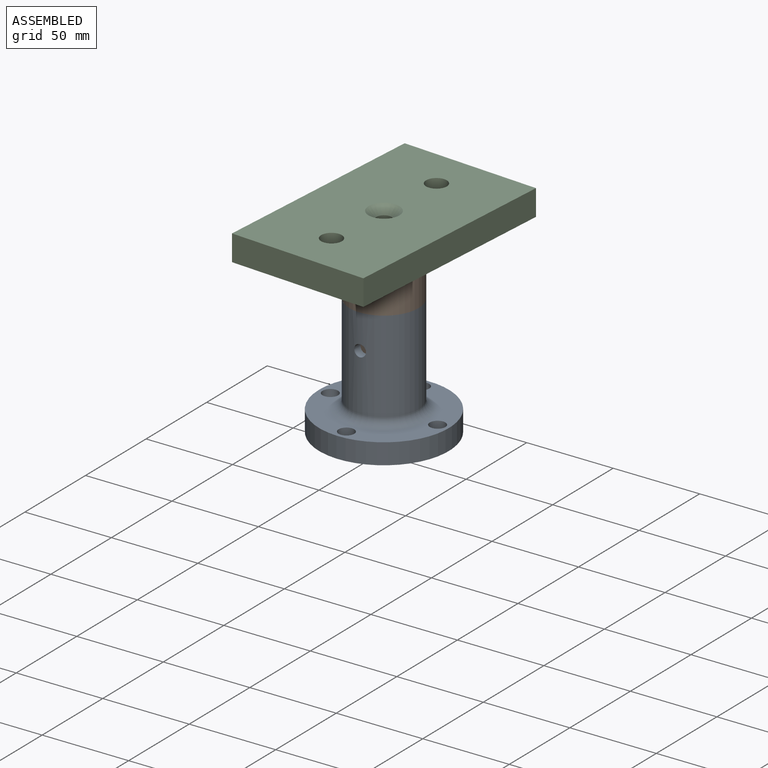
[diagram: assembled view]
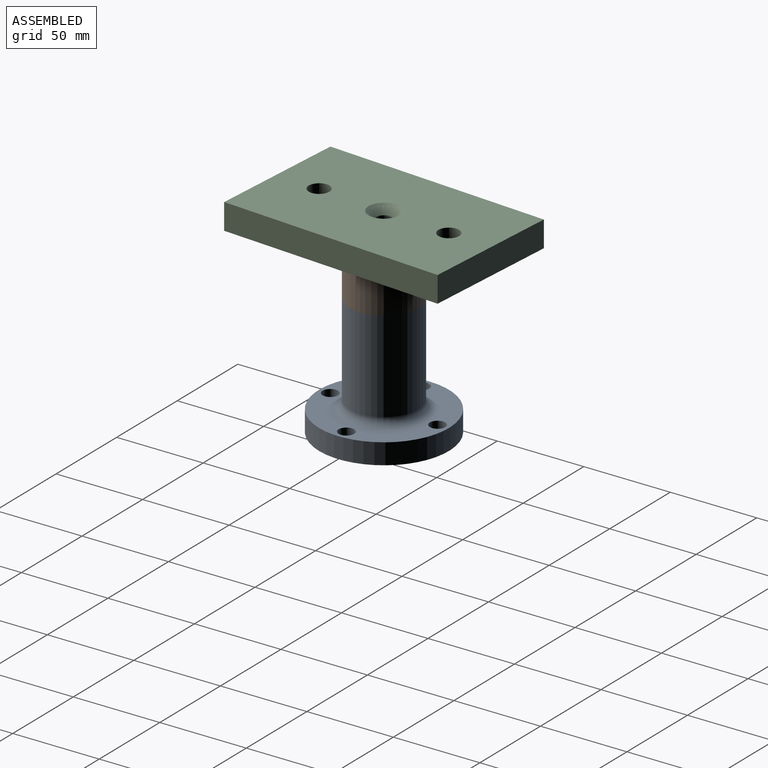
[diagram: assembled view, second angle]
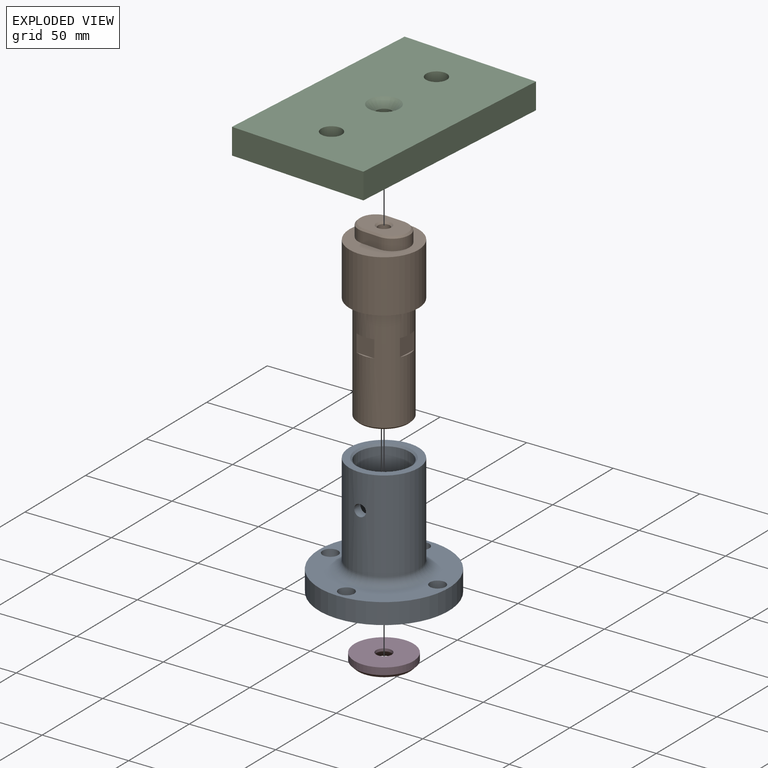
[diagram: exploded view]
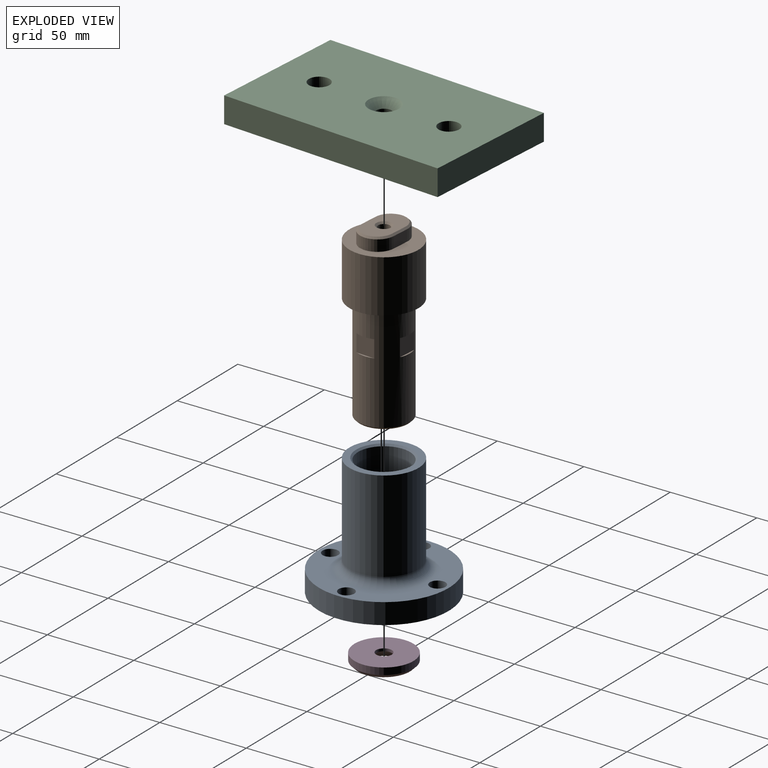
[diagram: exploded view, second angle]
ASSEMBLY  parts=4 mates=3
PART A: 15 faces, bbox 75x75x70 mm
  f0: cylinder r=20mm len=53mm, axis (0,0,-1), area 6623.4mm2, adj f6,f8,f14
  f1: cylinder r=15mm len=60.5mm, axis (0,0,-1), area 5665.6mm2, adj f7,f13,f14
  f2: cylinder r=17.5mm len=35mm, axis (0,0,-1), area 934.6mm2, adj f3,f7
  f3: plane 75x75mm, normal (0,0,-1), area 3201.3mm2, adj f2,f4,f9,f10,f11,f12
  f4: cylinder r=37.5mm len=75mm, axis (0,0,-1), area 2827.4mm2, adj f3,f5
  f5: plane 75x75mm, normal (0,0,1), area 2199.9mm2, adj f4,f8,f9,f10,f11,f12
  f6: plane 40x40mm, normal (0,0,1), area 452.4mm2, adj f0,f13
  f7: plane 35x35mm, normal (0,0,-1), area 255.3mm2, adj f1,f2
  f8: torus R=25mm, axis (0,0,-1), area 1076.6mm2, adj f0,f5
  f9: cylinder r=4.5mm len=12mm, axis (0,0,-1), area 339.3mm2, adj f3,f5
  f10: cylinder r=4.5mm len=12mm, axis (0,0,-1), area 339.3mm2, adj f3,f5
  f11: cylinder r=4.5mm len=12mm, axis (0,0,-1), area 339.3mm2, adj f3,f5
  f12: cylinder r=4.5mm len=12mm, axis (0,0,-1), area 339.3mm2, adj f3,f5
  f13: cone r=16mm half-angle=45deg, axis (0,0,1), area 137.7mm2, adj f1,f6
  f14: cylinder r=3.4mm len=6.8mm, axis (0,1,0), area 107.9mm2, adj f0,f1
PART B: 33 faces, bbox 40x40x100 mm
  f0: cylinder r=20mm len=40mm, axis (0,0,-1), area 3832.7mm2, adj f3,f20
  f1: plane 28x28mm, normal (0,0,-1), area 554.9mm2, adj f26,f27
  f2: cylinder r=15mm len=61mm, axis (0,0,-1), area 5308.5mm2, adj f3,f4,f5,f6,f7,f8,f9,f10
  f3: plane 40x40mm, normal (0,0,-1), area 549.8mm2, adj f0,f2
  f4: plane 10.77x10mm, normal (0,1,0), area 107.7mm2, adj f2,f5,f6
  f5: plane 10.77x1mm, normal (0,0,-1), area 7.2mm2, adj f2,f4
  f6: plane 10.77x1mm, normal (0,0,1), area 7.2mm2, adj f2,f4
  f7: plane 10.77x10mm, normal (1,0,0), area 107.7mm2, adj f2,f8,f9
  f8: plane 10.77x1mm, normal (0,0,-1), area 7.2mm2, adj f2,f7
  f9: plane 10.77x1mm, normal (0,0,1), area 7.2mm2, adj f2,f7
  f10: plane 10.77x10mm, normal (0,-1,0), area 107.7mm2, adj f2,f11,f12
  f11: plane 10.77x1mm, normal (0,0,-1), area 7.2mm2, adj f2,f10
  f12: plane 10.77x1mm, normal (0,0,1), area 7.2mm2, adj f2,f10
  f13: plane 10.77x10mm, normal (-1,0,0), area 107.7mm2, adj f2,f14,f15
  f14: plane 10.77x1mm, normal (0,0,-1), area 7.2mm2, adj f2,f13
  f15: plane 10.77x1mm, normal (0,0,1), area 7.2mm2, adj f2,f13
  f16: cylinder r=10mm len=20mm, axis (0,0,1), area 204.2mm2, adj f17,f19,f20,f30
  f17: plane 10x6.5mm, normal (1,0,0), area 65mm2, adj f16,f18,f20,f29
  f18: cylinder r=10mm len=20mm, axis (0,0,1), area 204.2mm2, adj f17,f19,f20,f31
  f19: plane 10x6.5mm, normal (-1,0,0), area 65mm2, adj f16,f18,f20,f32
  f20: plane 40x40mm, normal (0,0,1), area 742.5mm2, adj f0,f16,f17,f18,f19
  f21: plane 28x18mm, normal (0,0,1), area 373.6mm2, adj f28,f29,f30,f31,f32
  f22: cone r=0mm half-angle=59deg, axis (0,0,1), area 42.4mm2, adj f23
  f23: cylinder r=3.4mm len=18.75mm, axis (0,0,1), area 400.6mm2, adj f22,f28
  f24: cone r=0mm half-angle=59deg, axis (0,0,-1), area 42.4mm2, adj f25
  f25: cylinder r=3.4mm len=18.75mm, axis (0,0,-1), area 400.6mm2, adj f24,f26
  f26: cone r=3.4mm half-angle=45deg, axis (0,0,-1), area 34.7mm2, adj f1,f25
  f27: cone r=14mm half-angle=45deg, axis (0,0,1), area 128.8mm2, adj f1,f2
  f28: cone r=3.4mm half-angle=45deg, axis (0,0,1), area 34.7mm2, adj f21,f23
  f29: plane 10x1mm, normal (0.71,0,0.71), area 14.1mm2, adj f17,f21,f30,f31
  f30: cone r=10mm half-angle=45deg, axis (0,0,-1), area 42.2mm2, adj f16,f21,f29,f32
  f31: cone r=10mm half-angle=45deg, axis (0,0,-1), area 42.2mm2, adj f18,f21,f29,f32
  f32: plane 10x1mm, normal (-0.71,0,0.71), area 14.1mm2, adj f19,f21,f30,f31
PART C: 19 faces, bbox 130x80x15 mm
  f0: plane 80x15mm, normal (-1,0,0), area 1200mm2, adj f1,f3,f4,f5
  f1: plane 130x15mm, normal (0,-1,0), area 1950mm2, adj f0,f2,f4,f5
  f2: plane 80x15mm, normal (1,0,0), area 1200mm2, adj f1,f3,f4,f5
  f3: plane 130x15mm, normal (0,1,0), area 1950mm2, adj f0,f2,f4,f5
  f4: plane 130x80mm, normal (0,0,1), area 9921.6mm2, adj f0,f1,f2,f3,f6,f7,f14
  f5: plane 130x80mm, normal (0,0,-1), area 9573.7mm2, adj f0,f1,f2,f3,f6,f7,f15,f16
  f6: cylinder r=6mm len=15mm, axis (0,0,1), area 565.5mm2, adj f4,f5
  f7: cylinder r=6mm len=15mm, axis (0,0,1), area 565.5mm2, adj f4,f5
  f8: plane 10x7mm, normal (-1,0,0), area 70mm2, adj f9,f11,f12,f17
  f9: cylinder r=10mm len=20mm, axis (0,0,-1), area 219.9mm2, adj f8,f10,f12,f18
  f10: plane 10x7mm, normal (1,0,0), area 70mm2, adj f9,f11,f12,f16
  f11: cylinder r=10mm len=20mm, axis (0,0,-1), area 219.9mm2, adj f8,f10,f12,f15
  f12: plane 30x20mm, normal (0,0,-1), area 450.5mm2, adj f8,f9,f10,f11,f13
  f13: cylinder r=4.5mm len=9mm, axis (0,0,1), area 71.8mm2, adj f12,f14
  f14: cone r=4.5mm half-angle=45deg, axis (0,0,1), area 266.7mm2, adj f4,f13
  f15: cone r=11mm half-angle=45deg, axis (0,0,-1), area 46.7mm2, adj f5,f11,f16,f17
  f16: plane 10x1mm, normal (0.71,0,-0.71), area 14.1mm2, adj f5,f10,f15,f18
  f17: plane 10x1mm, normal (-0.71,0,-0.71), area 14.1mm2, adj f5,f8,f15,f18
  f18: cone r=11mm half-angle=45deg, axis (0,0,-1), area 46.7mm2, adj f5,f9,f16,f17
PART D: 6 faces, bbox 34x34x6 mm
  f0: cylinder r=17mm len=34mm, axis (0,0,-1), area 427.3mm2, adj f1,f5
  f1: plane 34x34mm, normal (0,0,1), area 844.3mm2, adj f0,f3
  f2: plane 30x30mm, normal (0,0,-1), area 454.6mm2, adj f4,f5
  f3: cylinder r=4.5mm len=9mm, axis (0,0,-1), area 43.5mm2, adj f1,f4
  f4: cone r=4.5mm half-angle=45deg, axis (0,0,-1), area 266.7mm2, adj f2,f3
  f5: cone r=17mm half-angle=45deg, axis (0,0,1), area 284.3mm2, adj f0,f2
PLACE A t=(-109.48,2.97,-21.02)mm fixed
PLACE B rot(axis=(0,0,-1),94deg) t=(-109.48,2.97,-13.02)mm
PLACE C rot(axis=(0,0,1),86deg) t=(-74.08,-64.65,79.48)mm
PLACE D rot(axis=(0,0,1),86deg) t=(-109.48,2.97,-19.02)mm
MATE fastened B.f0 <-> C.f13  axis (0,0,1) through (-109.48,2.97,79.48)mm
MATE fastened D.f3 <-> B.f0  axis (0,0,1) through (-109.48,2.97,-13.02)mm
MATE revolute B.f0 <-> A.f0  axis (0,0,-1) through (-109.48,2.97,48.98)mm
